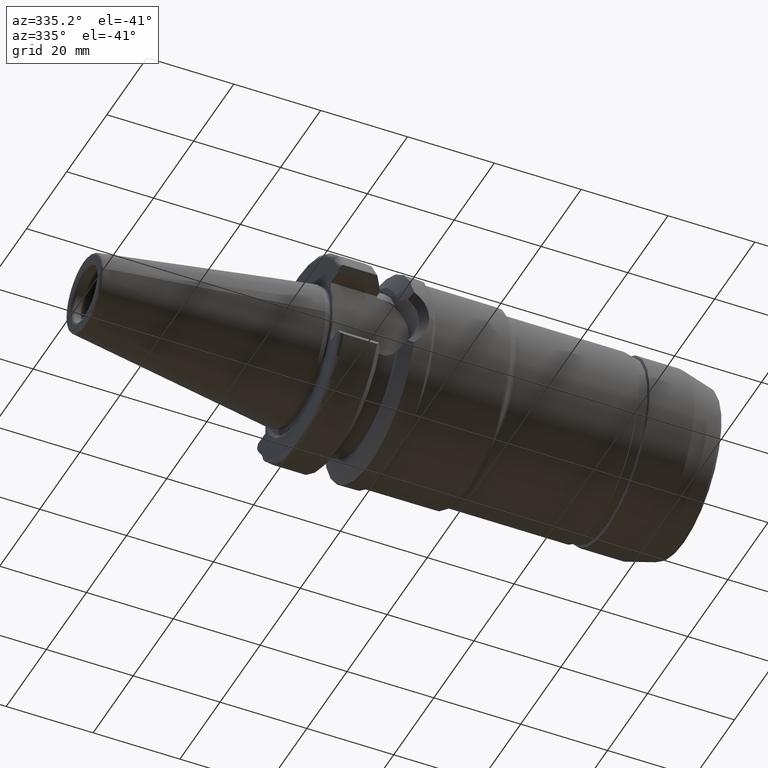
[diagram: clean part render]
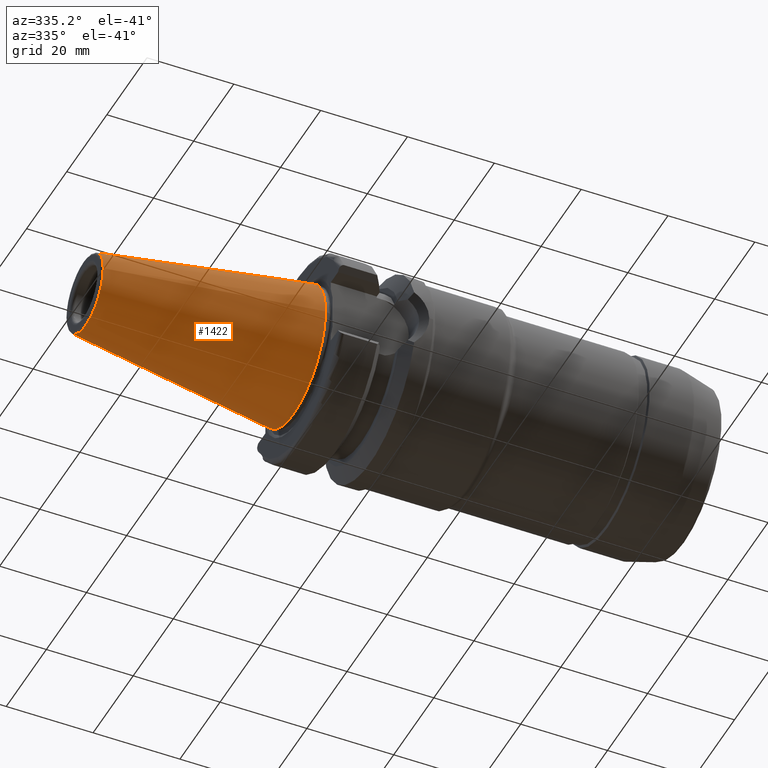
[diagram: same view with one face highlighted and labeled with its STEP entity id]
A machine part, auxiliary view. The second image highlights one B-rep face of the part: STEP entity #1422.
In plain terms, the highlighted conical surface has half-angle 8.297 deg.
Its self-contained STEP definition (entity closure, byte-faithful):
#106=CONICAL_SURFACE('',#1616,12.3770304778568,0.144812498238939);
#177=FACE_OUTER_BOUND('',#258,.T.);
#258=EDGE_LOOP('',(#1276,#1277,#1278,#1279,#1280,#1281,#1282));
#335=LINE('',#2763,#405);
#405=VECTOR('',#2043,12.3770304778568);
#504=CIRCLE('',#1612,8.87906095571352);
#505=CIRCLE('',#1613,8.87906095571352);
#506=CIRCLE('',#1614,8.87906095571352);
#508=CIRCLE('',#1617,15.875);
#509=CIRCLE('',#1618,15.875);
#659=VERTEX_POINT('',#2751);
#660=VERTEX_POINT('',#2752);
#661=VERTEX_POINT('',#2754);
#662=VERTEX_POINT('',#2759);
#663=VERTEX_POINT('',#2760);
#871=EDGE_CURVE('',#659,#660,#504,.T.);
#872=EDGE_CURVE('',#661,#659,#505,.T.);
#873=EDGE_CURVE('',#660,#661,#506,.T.);
#875=EDGE_CURVE('',#662,#663,#508,.T.);
#876=EDGE_CURVE('',#663,#662,#509,.T.);
#877=EDGE_CURVE('',#663,#661,#335,.T.);
#1276=ORIENTED_EDGE('',*,*,#875,.F.);
#1277=ORIENTED_EDGE('',*,*,#876,.F.);
#1278=ORIENTED_EDGE('',*,*,#877,.T.);
#1279=ORIENTED_EDGE('',*,*,#872,.T.);
#1280=ORIENTED_EDGE('',*,*,#871,.T.);
#1281=ORIENTED_EDGE('',*,*,#873,.T.);
#1282=ORIENTED_EDGE('',*,*,#877,.F.);
#1422=ADVANCED_FACE('',(#177),#106,.T.);
#1612=AXIS2_PLACEMENT_3D('',#2753,#2029,#2030);
#1613=AXIS2_PLACEMENT_3D('',#2755,#2031,#2032);
#1614=AXIS2_PLACEMENT_3D('',#2756,#2033,#2034);
#1616=AXIS2_PLACEMENT_3D('',#2758,#2037,#2038);
#1617=AXIS2_PLACEMENT_3D('',#2761,#2039,#2040);
#1618=AXIS2_PLACEMENT_3D('',#2762,#2041,#2042);
#2029=DIRECTION('center_axis',(1.,1.62798202122572E-21,0.));
#2030=DIRECTION('ref_axis',(0.,0.,-1.));
#2031=DIRECTION('center_axis',(1.,1.62798202122572E-21,0.));
#2032=DIRECTION('ref_axis',(0.,0.,-1.));
#2033=DIRECTION('center_axis',(1.,1.62798202122572E-21,0.));
#2034=DIRECTION('ref_axis',(0.,0.,-1.));
#2037=DIRECTION('center_axis',(1.,1.62798202122572E-21,0.));
#2038=DIRECTION('ref_axis',(0.,1.,0.));
#2039=DIRECTION('center_axis',(1.,1.62798202122572E-21,0.));
#2040=DIRECTION('ref_axis',(0.,0.,-1.));
#2041=DIRECTION('center_axis',(1.,1.62798202122572E-21,0.));
#2042=DIRECTION('ref_axis',(0.,0.,-1.));
#2043=DIRECTION('',(-0.989532981063282,0.144306893071729,1.76724974695192E-17));
#2751=CARTESIAN_POINT('',(-47.9721534465359,8.87906095571352,0.));
#2752=CARTESIAN_POINT('',(-47.9721534465359,9.94286113939637E-16,8.87906095571352));
#2753=CARTESIAN_POINT('Origin',(-47.9721534465359,2.08165747182452E-15,
0.));
#2754=CARTESIAN_POINT('',(-47.9721534465359,-8.87906095571352,-1.08737135788488E-15));
#2755=CARTESIAN_POINT('Origin',(-47.9721534465359,2.08165747182452E-15,
0.));
#2756=CARTESIAN_POINT('Origin',(-47.9721534465359,2.08165747182452E-15,
0.));
#2758=CARTESIAN_POINT('Origin',(-23.9860767232679,2.08169652072618E-15,
0.));
#2759=CARTESIAN_POINT('',(-5.27355936696949E-15,15.875,0.));
#2760=CARTESIAN_POINT('',(-8.88178419700125E-15,-15.875,-1.94412679364642E-15));
#2761=CARTESIAN_POINT('Origin',(-4.44089209850063E-15,2.08173556962785E-15,
0.));
#2762=CARTESIAN_POINT('Origin',(-4.44089209850063E-15,2.08173556962785E-15,
0.));
#2763=CARTESIAN_POINT('',(-23.9860767232679,-12.3770304778568,-1.51574907576565E-15));